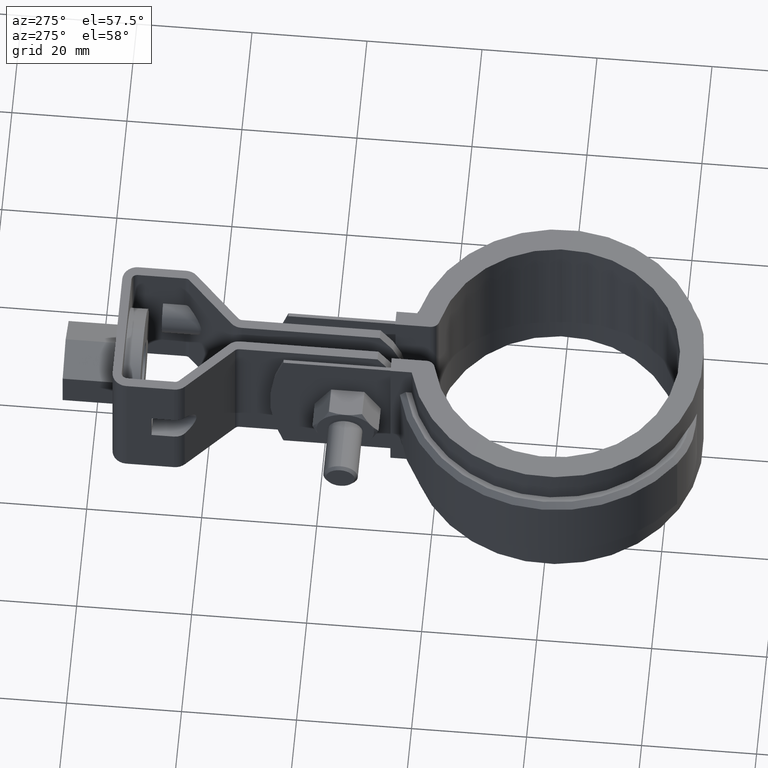
[diagram: clean part render]
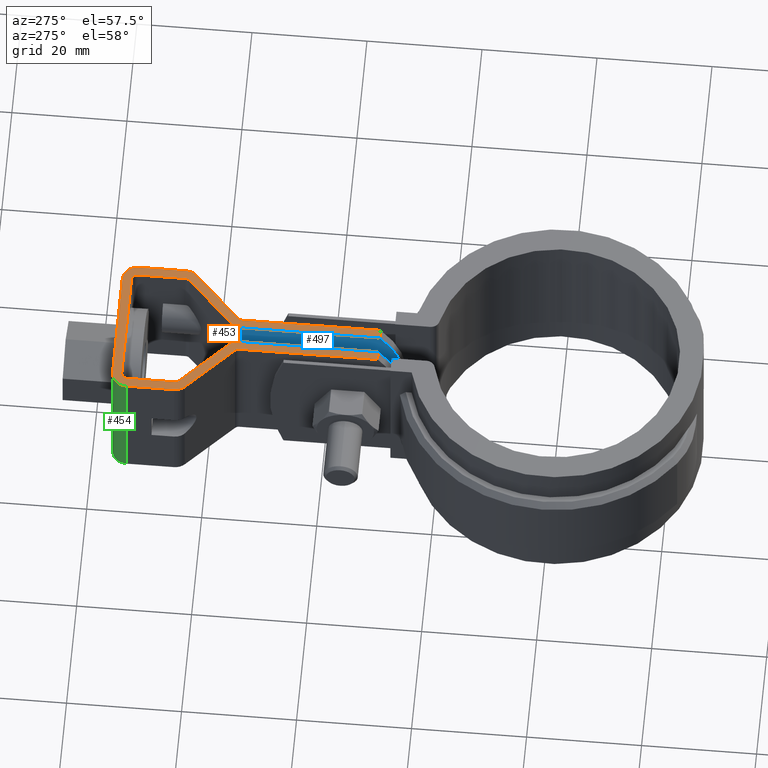
[diagram: same view with three faces highlighted in distinct colors, each labeled with its STEP entity id]
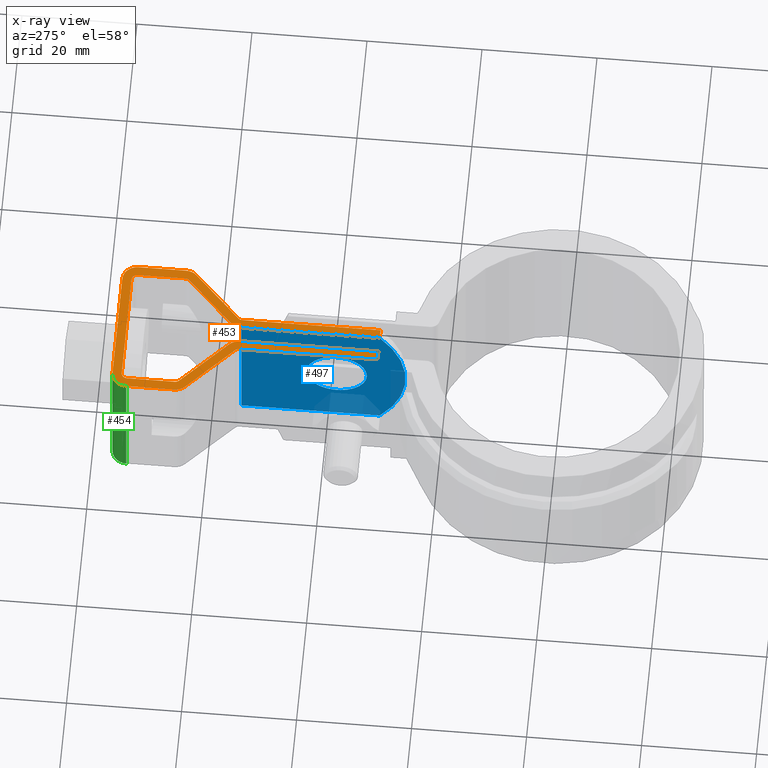
[diagram: x-ray of the same camera — body ghosted, the three highlighted faces saturated]
A machine part, auxiliary view with three faces highlighted in distinct colors.
The next image is the same camera in x-ray (body ghosted, the three faces saturated) — at least one of them is partly hidden behind the body in this view.
Their STEP definitions:

[orange] entity #453 — the highlighted planar face has unit normal (0, 0, -1).
#453 = ADVANCED_FACE( '', ( #844 ), #845, .F. );
#844 = FACE_OUTER_BOUND( '', #1730, .T. );
#845 = PLANE( '', #1731 );
#1730 = EDGE_LOOP( '', ( #4456, #4457, #4458, #4459, #4460, #4461, #4462, #4463, #4464, #4465, #4466, #4467, #4468, #4469, #4470, #4471, #4472, #4473, #4474, #4475, #4476, #4477, #4478, #4479, #4480, #4481, #4482, #4483 ) );
#1731 = AXIS2_PLACEMENT_3D( '', #4484, #4485, #4486 );
#4456 = ORIENTED_EDGE( '', *, *, #5594, .T. );
#4457 = ORIENTED_EDGE( '', *, *, #5595, .T. );
#4458 = ORIENTED_EDGE( '', *, *, #5596, .F. );
#4459 = ORIENTED_EDGE( '', *, *, #5597, .F. );
#4460 = ORIENTED_EDGE( '', *, *, #5598, .F. );
#4461 = ORIENTED_EDGE( '', *, *, #5599, .F. );
#4462 = ORIENTED_EDGE( '', *, *, #5600, .F. );
#4463 = ORIENTED_EDGE( '', *, *, #5601, .T. );
#4464 = ORIENTED_EDGE( '', *, *, #5602, .T. );
#4465 = ORIENTED_EDGE( '', *, *, #5603, .T. );
#4466 = ORIENTED_EDGE( '', *, *, #5604, .T. );
#4467 = ORIENTED_EDGE( '', *, *, #5605, .F. );
#4468 = ORIENTED_EDGE( '', *, *, #5606, .F. );
#4469 = ORIENTED_EDGE( '', *, *, #5607, .T. );
#4470 = ORIENTED_EDGE( '', *, *, #5608, .F. );
#4471 = ORIENTED_EDGE( '', *, *, #5609, .F. );
#4472 = ORIENTED_EDGE( '', *, *, #5610, .T. );
#4473 = ORIENTED_EDGE( '', *, *, #5611, .T. );
#4474 = ORIENTED_EDGE( '', *, *, #5612, .T. );
#4475 = ORIENTED_EDGE( '', *, *, #5613, .T. );
#4476 = ORIENTED_EDGE( '', *, *, #5614, .F. );
#4477 = ORIENTED_EDGE( '', *, *, #5615, .F. );
#4478 = ORIENTED_EDGE( '', *, *, #5616, .F. );
#4479 = ORIENTED_EDGE( '', *, *, #5617, .F. );
#4480 = ORIENTED_EDGE( '', *, *, #5618, .F. );
#4481 = ORIENTED_EDGE( '', *, *, #5619, .T. );
#4482 = ORIENTED_EDGE( '', *, *, #5620, .T. );
#4483 = ORIENTED_EDGE( '', *, *, #5621, .F. );
#4484 = CARTESIAN_POINT( '', ( -9.64999999999965, 73.8025110200027, -2.44387843295613E-011 ) );
#4485 = DIRECTION( '', ( 5.79906149265214E-015, 1.26121335597421E-013, -1.00000000000000 ) );
#4486 = DIRECTION( '', ( -9.21184560650170E-016, 1.00000000000000, 1.26121335597421E-013 ) );
#5594 = EDGE_CURVE( '', #6507, #6508, #6509, .T. );
#5595 = EDGE_CURVE( '', #6508, #6510, #6511, .F. );
#5596 = EDGE_CURVE( '', #6512, #6510, #6513, .T. );
#5597 = EDGE_CURVE( '', #6514, #6512, #6515, .T. );
#5598 = EDGE_CURVE( '', #6516, #6514, #6517, .T. );
#5599 = EDGE_CURVE( '', #6518, #6516, #6519, .T. );
#5600 = EDGE_CURVE( '', #6520, #6518, #6521, .T. );
#5601 = EDGE_CURVE( '', #6520, #6522, #6523, .T. );
#5602 = EDGE_CURVE( '', #6522, #6524, #6525, .T. );
#5603 = EDGE_CURVE( '', #6524, #6526, #6527, .T. );
#5604 = EDGE_CURVE( '', #6526, #6528, #6529, .T. );
#5605 = EDGE_CURVE( '', #6530, #6528, #6531, .F. );
#5606 = EDGE_CURVE( '', #6532, #6530, #6533, .T. );
#5607 = EDGE_CURVE( '', #6532, #6534, #6535, .F. );
#5608 = EDGE_CURVE( '', #6536, #6534, #6537, .T. );
#5609 = EDGE_CURVE( '', #6538, #6536, #6539, .T. );
#5610 = EDGE_CURVE( '', #6538, #6540, #6541, .T. );
#5611 = EDGE_CURVE( '', #6540, #6542, #6543, .T. );
#5612 = EDGE_CURVE( '', #6542, #6544, #6545, .T. );
#5613 = EDGE_CURVE( '', #6544, #6546, #6547, .T. );
#5614 = EDGE_CURVE( '', #6548, #6546, #6549, .T. );
#5615 = EDGE_CURVE( '', #6550, #6548, #6551, .T. );
#5616 = EDGE_CURVE( '', #6552, #6550, #6553, .T. );
#5617 = EDGE_CURVE( '', #6554, #6552, #6555, .T. );
#5618 = EDGE_CURVE( '', #6556, #6554, #6557, .T. );
#5619 = EDGE_CURVE( '', #6556, #6558, #6559, .T. );
#5620 = EDGE_CURVE( '', #6558, #6560, #6561, .T. );
#5621 = EDGE_CURVE( '', #6507, #6560, #6562, .F. );
#6507 = VERTEX_POINT( '', #10201 );
#6508 = VERTEX_POINT( '', #10202 );
#6509 = LINE( '', #10203, #10204 );
#6510 = VERTEX_POINT( '', #10205 );
#6511 = CIRCLE( '', #10206, 2.60000000000000 );
#6512 = VERTEX_POINT( '', #10207 );
#6513 = LINE( '', #10208, #10209 );
#6514 = VERTEX_POINT( '', #10210 );
#6515 = CIRCLE( '', #10211, 1.00000000000000 );
#6516 = VERTEX_POINT( '', #10212 );
#6517 = LINE( '', #10213, #10214 );
#6518 = VERTEX_POINT( '', #10215 );
#6519 = CIRCLE( '', #10216, 1.00000000000000 );
#6520 = VERTEX_POINT( '', #10217 );
#6521 = LINE( '', #10218, #10219 );
#6522 = VERTEX_POINT( '', #10220 );
#6523 = CIRCLE( '', #10221, 1.00000000000000 );
#6524 = VERTEX_POINT( '', #10222 );
#6525 = LINE( '', #10223, #10224 );
#6526 = VERTEX_POINT( '', #10225 );
#6527 = CIRCLE( '', #10226, 0.999999999999999 );
#6528 = VERTEX_POINT( '', #10227 );
#6529 = LINE( '', #10228, #10229 );
#6530 = VERTEX_POINT( '', #10230 );
#6531 = CIRCLE( '', #10231, 2.59999999999999 );
#6532 = VERTEX_POINT( '', #10232 );
#6533 = LINE( '', #10233, #10234 );
#6534 = VERTEX_POINT( '', #10235 );
#6535 = LINE( '', #10236, #10237 );
#6536 = VERTEX_POINT( '', #10238 );
#6537 = LINE( '', #10239, #10240 );
#6538 = VERTEX_POINT( '', #10241 );
#6539 = CIRCLE( '', #10242, 0.999999999999998 );
#6540 = VERTEX_POINT( '', #10243 );
#6541 = LINE( '', #10244, #10245 );
#6542 = VERTEX_POINT( '', #10246 );
#6543 = CIRCLE( '', #10247, 2.59999999999999 );
#6544 = VERTEX_POINT( '', #10248 );
#6545 = LINE( '', #10249, #10250 );
#6546 = VERTEX_POINT( '', #10251 );
#6547 = CIRCLE( '', #10252, 2.59999999999999 );
#6548 = VERTEX_POINT( '', #10253 );
#6549 = LINE( '', #10254, #10255 );
#6550 = VERTEX_POINT( '', #10256 );
#6551 = CIRCLE( '', #10257, 2.59999999999999 );
#6552 = VERTEX_POINT( '', #10258 );
#6553 = LINE( '', #10259, #10260 );
#6554 = VERTEX_POINT( '', #10261 );
#6555 = CIRCLE( '', #10262, 2.59999999999999 );
#6556 = VERTEX_POINT( '', #10263 );
#6557 = LINE( '', #10264, #10265 );
#6558 = VERTEX_POINT( '', #10266 );
#6559 = CIRCLE( '', #10267, 1.00000000000000 );
#6560 = VERTEX_POINT( '', #10268 );
#6561 = LINE( '', #10269, #10270 );
#6562 = LINE( '', #10271, #10272 );
#10201 = CARTESIAN_POINT( '', ( -1.39999999999960, 30.9025110530909, -2.98233659989933E-011 ) );
#10202 = CARTESIAN_POINT( '', ( -1.39999999999963, 54.9566573942989, -2.67841304690819E-011 ) );
#10203 = CARTESIAN_POINT( '', ( -1.39999999999960, 26.4025110200029, -3.03923552991137E-011 ) );
#10204 = VECTOR( '', #11263, 1000.00000000000 );
#10205 = CARTESIAN_POINT( '', ( -2.18435802762033, 56.8176905020471, -2.65482080763491E-011 ) );
#10206 = AXIS2_PLACEMENT_3D( '', #11264, #11265, #11266 );
#10207 = CARTESIAN_POINT( '', ( -10.3483238355301, 64.7825348243743, -2.55906407176099E-011 ) );
#10208 = CARTESIAN_POINT( '', ( -10.3483238355301, 64.7825348243743, -2.55906407176099E-011 ) );
#10209 = VECTOR( '', #11267, 1000.00000000000 );
#10210 = CARTESIAN_POINT( '', ( -10.6499999999996, 65.4983167888927, -2.54934962029552E-011 ) );
#10211 = AXIS2_PLACEMENT_3D( '', #11268, #11269, #11270 );
#10212 = CARTESIAN_POINT( '', ( -10.6499999999996, 73.8025110200027, -2.44526621173691E-011 ) );
#10213 = CARTESIAN_POINT( '', ( -10.6499999999996, 73.8025110200027, -2.44526621173691E-011 ) );
#10214 = VECTOR( '', #11271, 1000.00000000000 );
#10215 = CARTESIAN_POINT( '', ( -9.64999999999965, 74.8025110200027, -2.43138842392909E-011 ) );
#10216 = AXIS2_PLACEMENT_3D( '', #11272, #11273, #11274 );
#10217 = CARTESIAN_POINT( '', ( 9.65000000000034, 74.8025110200030, -2.41751063612128E-011 ) );
#10218 = CARTESIAN_POINT( '', ( 9.65000000000036, 74.8025110200027, -2.42028619368284E-011 ) );
#10219 = VECTOR( '', #11275, 1000.00000000000 );
#10220 = CARTESIAN_POINT( '', ( 10.6500000000003, 73.8025110200030, -2.43000064514831E-011 ) );
#10221 = AXIS2_PLACEMENT_3D( '', #11276, #11277, #11278 );
#10222 = CARTESIAN_POINT( '', ( 10.6500000000003, 65.4983167888931, -2.53408405370692E-011 ) );
#10223 = CARTESIAN_POINT( '', ( 10.6500000000003, 73.8025110200030, -2.43000064514831E-011 ) );
#10224 = VECTOR( '', #11279, 1000.00000000000 );
#10225 = CARTESIAN_POINT( '', ( 10.3483238355309, 64.7825348243746, -2.54379850517239E-011 ) );
#10226 = AXIS2_PLACEMENT_3D( '', #11280, #11281, #11282 );
#10227 = CARTESIAN_POINT( '', ( 2.18435802762107, 56.8176905020473, -2.64926969251178E-011 ) );
#10228 = CARTESIAN_POINT( '', ( 10.3483238355309, 64.7825348243746, -2.54379850517239E-011 ) );
#10229 = VECTOR( '', #11283, 1000.00000000000 );
#10230 = CARTESIAN_POINT( '', ( 1.40000000000037, 54.9566573942992, -2.67424971056585E-011 ) );
#10231 = AXIS2_PLACEMENT_3D( '', #11284, #11285, #11286 );
#10232 = CARTESIAN_POINT( '', ( 1.40000000000039, 30.9025110530911, -2.97817326355698E-011 ) );
#10233 = CARTESIAN_POINT( '', ( 1.40000000000039, 26.4025110200031, -3.03368441478824E-011 ) );
#10234 = VECTOR( '', #11287, 1000.00000000000 );
#10235 = CARTESIAN_POINT( '', ( 3.00000000000041, 30.9025110579827, 5.88354365227417E-009 ) );
#10236 = CARTESIAN_POINT( '', ( 38.4737108565962, 30.9025110530912, -2.95596880306448E-011 ) );
#10237 = VECTOR( '', #11288, 999.999999999998 );
#10238 = CARTESIAN_POINT( '', ( 3.00000000000036, 54.9566574245233, -2.67286193178506E-011 ) );
#10239 = CARTESIAN_POINT( '', ( 3.00000000000036, 55.3781211934134, -2.66731081666194E-011 ) );
#10240 = VECTOR( '', #11289, 1000.00000000000 );
#10241 = CARTESIAN_POINT( '', ( 3.30167616446986, 55.6724393890418, -2.66314748031959E-011 ) );
#10242 = AXIS2_PLACEMENT_3D( '', #11290, #11291, #11292 );
#10243 = CARTESIAN_POINT( '', ( 11.4656419723796, 63.6372837113691, -2.55767629298020E-011 ) );
#10244 = CARTESIAN_POINT( '', ( 3.90167616446986, 56.2578052156314, -2.65482080763491E-011 ) );
#10245 = VECTOR( '', #11293, 1000.00000000000 );
#10246 = CARTESIAN_POINT( '', ( 12.2500000000003, 65.4983168191172, -2.53408405370692E-011 ) );
#10247 = AXIS2_PLACEMENT_3D( '', #11294, #11295, #11296 );
#10248 = CARTESIAN_POINT( '', ( 12.2500000000003, 73.8025110200030, -2.42861286636753E-011 ) );
#10249 = CARTESIAN_POINT( '', ( 12.2500000000003, 65.4983168191172, -2.53408405370692E-011 ) );
#10250 = VECTOR( '', #11297, 1000.00000000000 );
#10251 = CARTESIAN_POINT( '', ( 9.65000000000034, 76.4025110200030, -2.39808173319034E-011 ) );
#10252 = AXIS2_PLACEMENT_3D( '', #11298, #11299, #11300 );
#10253 = CARTESIAN_POINT( '', ( -9.64999999999965, 76.4025110200027, -2.41195952099815E-011 ) );
#10254 = CARTESIAN_POINT( '', ( -9.64999999999965, 76.4025110200027, -2.41195952099815E-011 ) );
#10255 = VECTOR( '', #11301, 1000.00000000000 );
#10256 = CARTESIAN_POINT( '', ( -12.2499999999996, 73.8025110200027, -2.44526621173691E-011 ) );
#10257 = AXIS2_PLACEMENT_3D( '', #11302, #11303, #11304 );
#10258 = CARTESIAN_POINT( '', ( -12.2499999999996, 65.4983168191169, -2.55073739907630E-011 ) );
#10259 = CARTESIAN_POINT( '', ( -12.2499999999996, 65.4983168191169, -2.55073739907630E-011 ) );
#10260 = VECTOR( '', #11305, 1000.00000000000 );
#10261 = CARTESIAN_POINT( '', ( -11.4656419723789, 63.6372837113687, -2.57294185956880E-011 ) );
#10262 = AXIS2_PLACEMENT_3D( '', #11306, #11307, #11308 );
#10263 = CARTESIAN_POINT( '', ( -3.30167616446912, 55.6724393890415, -2.66869859544272E-011 ) );
#10264 = CARTESIAN_POINT( '', ( -3.90167616446913, 56.2578052156311, -2.66175970153881E-011 ) );
#10265 = VECTOR( '', #11309, 1000.00000000000 );
#10266 = CARTESIAN_POINT( '', ( -2.99999999999962, 54.9566574245230, -2.67980082568897E-011 ) );
#10267 = AXIS2_PLACEMENT_3D( '', #11310, #11311, #11312 );
#10268 = CARTESIAN_POINT( '', ( -2.99999999999963, 30.9025110579824, 5.88348814112294E-009 ) );
#10269 = CARTESIAN_POINT( '', ( -2.99999999999962, 55.3781211934131, -2.67424971056585E-011 ) );
#10270 = VECTOR( '', #11313, 1000.00000000000 );
#10271 = CARTESIAN_POINT( '', ( -38.4737108565955, 30.9025110530908, -3.00315328161105E-011 ) );
#10272 = VECTOR( '', #11314, 1000.00000000000 );
#11263 = DIRECTION( '', ( -1.03220686311269E-015, 1.00000000000000, 1.26121335597421E-013 ) );
#11264 = CARTESIAN_POINT( '', ( -3.99999999999962, 54.9566573942989, -2.67841304690819E-011 ) );
#11265 = DIRECTION( '', ( 5.79906149265214E-015, 1.26121335597421E-013, -1.00000000000000 ) );
#11266 = DIRECTION( '', ( -1.00000000000000, -9.21184560649439E-016, -5.79906149265226E-015 ) );
#11267 = DIRECTION( '', ( 0.715781964518506, -0.698323835530500, -8.39226711890465E-014 ) );
#11268 = CARTESIAN_POINT( '', ( -9.64999999999964, 65.4983167888927, -2.54934962029552E-011 ) );
#11269 = DIRECTION( '', ( -5.79906149265214E-015, -1.26121335597421E-013, 1.00000000000000 ) );
#11270 = DIRECTION( '', ( -1.00000000000000, -9.21184560649439E-016, -5.79906149265226E-015 ) );
#11271 = DIRECTION( '', ( 9.21184560650170E-016, -1.00000000000000, -1.26121335597421E-013 ) );
#11272 = CARTESIAN_POINT( '', ( -9.64999999999965, 73.8025110200027, -2.44387843295613E-011 ) );
#11273 = DIRECTION( '', ( -5.79906149265214E-015, -1.26121335597421E-013, 1.00000000000000 ) );
#11274 = DIRECTION( '', ( -9.21184560650170E-016, 1.00000000000000, 1.26121335597421E-013 ) );
#11275 = DIRECTION( '', ( -1.00000000000000, -9.21184560649439E-016, -5.79906149265226E-015 ) );
#11276 = CARTESIAN_POINT( '', ( 9.65000000000034, 73.8025110200030, -2.43000064514831E-011 ) );
#11277 = DIRECTION( '', ( 5.79906149265214E-015, 1.26121335597421E-013, -1.00000000000000 ) );
#11278 = DIRECTION( '', ( -7.98723925267933E-016, 1.00000000000000, 1.26121335597421E-013 ) );
#11279 = DIRECTION( '', ( 7.98723925267933E-016, -1.00000000000000, -1.26121335597421E-013 ) );
#11280 = CARTESIAN_POINT( '', ( 9.65000000000035, 65.4983167888931, -2.53547183248770E-011 ) );
#11281 = DIRECTION( '', ( 5.79906149265214E-015, 1.26121335597421E-013, -1.00000000000000 ) );
#11282 = DIRECTION( '', ( 1.00000000000000, 7.98723925267201E-016, 5.79906149265224E-015 ) );
#11283 = DIRECTION( '', ( -0.715781964518503, -0.698323835530503, -9.22243984441952E-014 ) );
#11284 = CARTESIAN_POINT( '', ( 4.00000000000036, 54.9566573942992, -2.67147415300428E-011 ) );
#11285 = DIRECTION( '', ( -5.79906149265214E-015, -1.26121335597421E-013, 1.00000000000000 ) );
#11286 = DIRECTION( '', ( 1.00000000000000, 7.98723925267201E-016, 5.79906149265224E-015 ) );
#11287 = DIRECTION( '', ( -6.87701622805418E-016, 1.00000000000000, 1.26121335597421E-013 ) );
#11288 = DIRECTION( '', ( -1.00000000000000, -7.98723925267201E-016, -5.79906149265224E-015 ) );
#11289 = DIRECTION( '', ( 6.87701622805418E-016, -1.00000000000000, -1.26121335597421E-013 ) );
#11290 = CARTESIAN_POINT( '', ( 4.00000000000036, 54.9566574245233, -2.67147415300428E-011 ) );
#11291 = DIRECTION( '', ( -5.79906149265214E-015, -1.26121335597421E-013, 1.00000000000000 ) );
#11292 = DIRECTION( '', ( 1.00000000000000, 7.98723925267201E-016, 5.79906149265224E-015 ) );
#11293 = DIRECTION( '', ( 0.715781964518503, 0.698323835530503, 9.22243984441952E-014 ) );
#11294 = CARTESIAN_POINT( '', ( 9.65000000000035, 65.4983168191172, -2.53547183248770E-011 ) );
#11295 = DIRECTION( '', ( -5.79906149265214E-015, -1.26121335597421E-013, 1.00000000000000 ) );
#11296 = DIRECTION( '', ( 0.698323835530501, -0.715781964518505, -8.62257544975938E-014 ) );
#11297 = DIRECTION( '', ( -7.98723925267933E-016, 1.00000000000000, 1.26121335597421E-013 ) );
#11298 = CARTESIAN_POINT( '', ( 9.65000000000034, 73.8025110200030, -2.43000064514831E-011 ) );
#11299 = DIRECTION( '', ( -5.79906149265214E-015, -1.26121335597421E-013, 1.00000000000000 ) );
#11300 = DIRECTION( '', ( 1.00000000000000, 7.98723925267201E-016, 5.79906149265224E-015 ) );
#11301 = DIRECTION( '', ( 1.00000000000000, 9.21184560649439E-016, 5.79906149265226E-015 ) );
#11302 = CARTESIAN_POINT( '', ( -9.64999999999965, 73.8025110200027, -2.44387843295613E-011 ) );
#11303 = DIRECTION( '', ( 5.79906149265214E-015, 1.26121335597421E-013, -1.00000000000000 ) );
#11304 = DIRECTION( '', ( -1.00000000000000, -9.21184560649439E-016, -5.79906149265226E-015 ) );
#11305 = DIRECTION( '', ( -9.21184560650170E-016, 1.00000000000000, 1.26121335597421E-013 ) );
#11306 = CARTESIAN_POINT( '', ( -9.64999999999964, 65.4983168191169, -2.54934962029552E-011 ) );
#11307 = DIRECTION( '', ( 5.79906149265215E-015, 1.26121335597421E-013, -1.00000000000000 ) );
#11308 = DIRECTION( '', ( -0.698323835530501, -0.715781964518505, -9.43250002256460E-014 ) );
#11309 = DIRECTION( '', ( -0.715781964518506, 0.698323835530500, 8.39226711890465E-014 ) );
#11310 = CARTESIAN_POINT( '', ( -3.99999999999962, 54.9566574245230, -2.67841304690819E-011 ) );
#11311 = DIRECTION( '', ( 5.79906149265214E-015, 1.26121335597421E-013, -1.00000000000000 ) );
#11312 = DIRECTION( '', ( -1.00000000000000, -9.21184560649439E-016, -5.79906149265226E-015 ) );
#11313 = DIRECTION( '', ( 1.03220686311269E-015, -1.00000000000000, -1.26121335597421E-013 ) );
#11314 = DIRECTION( '', ( 1.00000000000000, 9.21184560649439E-016, 5.79906149265226E-015 ) );

[blue] entity #497 — the highlighted planar face has unit normal (-1, -0, -0).
#497 = ADVANCED_FACE( '', ( #940, #941 ), #942, .T. );
#940 = FACE_BOUND( '', #1826, .T. );
#941 = FACE_OUTER_BOUND( '', #1827, .T. );
#942 = PLANE( '', #1828 );
#1826 = EDGE_LOOP( '', ( #4851 ) );
#1827 = EDGE_LOOP( '', ( #4852, #4853, #4854, #4855 ) );
#1828 = AXIS2_PLACEMENT_3D( '', #4856, #4857, #4858 );
#4851 = ORIENTED_EDGE( '', *, *, #5727, .F. );
#4852 = ORIENTED_EDGE( '', *, *, #5720, .F. );
#4853 = ORIENTED_EDGE( '', *, *, #5627, .F. );
#4854 = ORIENTED_EDGE( '', *, *, #5606, .T. );
#4855 = ORIENTED_EDGE( '', *, *, #5726, .F. );
#4856 = CARTESIAN_POINT( '', ( 1.40000000000054, 26.4025110200062, -25.0000000000303 ) );
#4857 = DIRECTION( '', ( -1.00000000000000, -1.02076853019222E-015, -5.86029181034339E-015 ) );
#4858 = DIRECTION( '', ( 1.02076853019296E-015, -1.00000000000000, -1.26121335597421E-013 ) );
#5606 = EDGE_CURVE( '', #6532, #6530, #6533, .T. );
#5627 = EDGE_CURVE( '', #6532, #6569, #6572, .T. );
#5720 = EDGE_CURVE( '', #6569, #6721, #6722, .T. );
#5726 = EDGE_CURVE( '', #6721, #6530, #6728, .T. );
#5727 = EDGE_CURVE( '', #6729, #6729, #6730, .F. );
#6530 = VERTEX_POINT( '', #10230 );
#6532 = VERTEX_POINT( '', #10232 );
#6533 = LINE( '', #10233, #10234 );
#6569 = VERTEX_POINT( '', #10281 );
#6572 = CIRCLE( '', #10285, 19.6111110000000 );
#6721 = VERTEX_POINT( '', #10541 );
#6722 = LINE( '', #10542, #10543 );
#6728 = LINE( '', #10553, #10554 );
#6729 = VERTEX_POINT( '', #10555 );
#6730 = CIRCLE( '', #10556, 5.25000000000002 );
#10230 = CARTESIAN_POINT( '', ( 1.40000000000037, 54.9566573942992, -2.67424971056585E-011 ) );
#10232 = CARTESIAN_POINT( '', ( 1.40000000000039, 30.9025110530911, -2.97817326355698E-011 ) );
#10233 = CARTESIAN_POINT( '', ( 1.40000000000039, 26.4025110200031, -3.03368441478824E-011 ) );
#10234 = VECTOR( '', #11287, 1000.00000000000 );
#10281 = CARTESIAN_POINT( '', ( 1.40000000000054, 30.9025110530944, -25.0000000000298 ) );
#10285 = AXIS2_PLACEMENT_3D( '', #11324, #11325, #11326 );
#10541 = CARTESIAN_POINT( '', ( 1.40000000000052, 54.9566573943024, -25.0000000000267 ) );
#10542 = CARTESIAN_POINT( '', ( 1.40000000000054, 26.4025110200062, -25.0000000000303 ) );
#10543 = VECTOR( '', #11469, 1000.00000000000 );
#10553 = CARTESIAN_POINT( '', ( 1.40000000000051, 54.9566573943024, -25.0000000000267 ) );
#10554 = VECTOR( '', #11477, 1000.00000000000 );
#10555 = CARTESIAN_POINT( '', ( 1.40000000000046, 33.1525110200045, -12.5000000000295 ) );
#10556 = AXIS2_PLACEMENT_3D( '', #11478, #11479, #11480 );
#11287 = DIRECTION( '', ( -6.87701622805418E-016, 1.00000000000000, 1.26121335597421E-013 ) );
#11324 = CARTESIAN_POINT( '', ( 1.40000000000044, 46.0136220200045, -12.5000000000278 ) );
#11325 = DIRECTION( '', ( 1.00000000000000, 1.02076853019223E-015, 5.86029181034339E-015 ) );
#11326 = DIRECTION( '', ( 1.02076853019296E-015, -1.00000000000000, -1.26121335597421E-013 ) );
#11469 = DIRECTION( '', ( -6.87701622805418E-016, 1.00000000000000, 1.26121335597421E-013 ) );
#11477 = DIRECTION( '', ( -5.86029181034326E-015, -1.26181072489967E-013, 1.00000000000000 ) );
#11478 = CARTESIAN_POINT( '', ( 1.40000000000045, 38.4025110200045, -12.5000000000288 ) );
#11479 = DIRECTION( '', ( 1.00000000000000, 1.02076853019223E-015, 5.86029181034339E-015 ) );
#11480 = DIRECTION( '', ( 1.02076853019296E-015, -1.00000000000000, -1.26121335597421E-013 ) );

[green] entity #454 — the highlighted cylindrical surface (edge-blend (fillet) strip) has radius 2.6 mm, axis along (-0, -0, 1).
#454 = ADVANCED_FACE( '', ( #846 ), #847, .T. );
#846 = FACE_OUTER_BOUND( '', #1732, .T. );
#847 = CYLINDRICAL_SURFACE( '', #1733, 2.59999999999999 );
#1732 = EDGE_LOOP( '', ( #4487, #4488, #4489, #4490 ) );
#1733 = AXIS2_PLACEMENT_3D( '', #4491, #4492, #4493 );
#4487 = ORIENTED_EDGE( '', *, *, #5622, .F. );
#4488 = ORIENTED_EDGE( '', *, *, #5623, .F. );
#4489 = ORIENTED_EDGE( '', *, *, #5615, .T. );
#4490 = ORIENTED_EDGE( '', *, *, #5624, .T. );
#4491 = CARTESIAN_POINT( '', ( -9.64999999999965, 73.8025110200027, -2.44387843295613E-011 ) );
#4492 = DIRECTION( '', ( -5.79906149265214E-015, -1.26121335597421E-013, 1.00000000000000 ) );
#4493 = DIRECTION( '', ( -9.21184560650170E-016, 1.00000000000000, 1.26121335597421E-013 ) );
#5615 = EDGE_CURVE( '', #6550, #6548, #6551, .T. );
#5622 = EDGE_CURVE( '', #6563, #6564, #6565, .T. );
#5623 = EDGE_CURVE( '', #6550, #6563, #6566, .T. );
#5624 = EDGE_CURVE( '', #6548, #6564, #6567, .T. );
#6548 = VERTEX_POINT( '', #10253 );
#6550 = VERTEX_POINT( '', #10256 );
#6551 = CIRCLE( '', #10257, 2.59999999999999 );
#6563 = VERTEX_POINT( '', #10273 );
#6564 = VERTEX_POINT( '', #10274 );
#6565 = CIRCLE( '', #10275, 2.59999999999999 );
#6566 = LINE( '', #10276, #10277 );
#6567 = LINE( '', #10278, #10279 );
#10253 = CARTESIAN_POINT( '', ( -9.64999999999965, 76.4025110200027, -2.41195952099815E-011 ) );
#10256 = CARTESIAN_POINT( '', ( -12.2499999999996, 73.8025110200027, -2.44526621173691E-011 ) );
#10257 = AXIS2_PLACEMENT_3D( '', #11302, #11303, #11304 );
#10273 = CARTESIAN_POINT( '', ( -12.2499999999995, 73.8025110200059, -25.0000000000245 ) );
#10274 = CARTESIAN_POINT( '', ( -9.64999999999951, 76.4025110200058, -25.0000000000241 ) );
#10275 = AXIS2_PLACEMENT_3D( '', #11315, #11316, #11317 );
#10276 = CARTESIAN_POINT( '', ( -12.2499999999996, 73.8025110200027, -2.44526621173691E-011 ) );
#10277 = VECTOR( '', #11318, 1000.00000000000 );
#10278 = CARTESIAN_POINT( '', ( -9.64999999999965, 76.4025110200027, -2.41195952099815E-011 ) );
#10279 = VECTOR( '', #11319, 1000.00000000000 );
#11302 = CARTESIAN_POINT( '', ( -9.64999999999965, 73.8025110200027, -2.44387843295613E-011 ) );
#11303 = DIRECTION( '', ( 5.79906149265214E-015, 1.26121335597421E-013, -1.00000000000000 ) );
#11304 = DIRECTION( '', ( -1.00000000000000, -9.21184560649439E-016, -5.79906149265226E-015 ) );
#11315 = CARTESIAN_POINT( '', ( -9.64999999999950, 73.8025110200059, -25.0000000000244 ) );
#11316 = DIRECTION( '', ( 5.79906149265214E-015, 1.26121335597421E-013, -1.00000000000000 ) );
#11317 = DIRECTION( '', ( -1.00000000000000, -9.21184560649439E-016, -5.79906149265226E-015 ) );
#11318 = DIRECTION( '', ( 5.79906149265214E-015, 1.26121335597421E-013, -1.00000000000000 ) );
#11319 = DIRECTION( '', ( 5.79906149265214E-015, 1.26121335597421E-013, -1.00000000000000 ) );